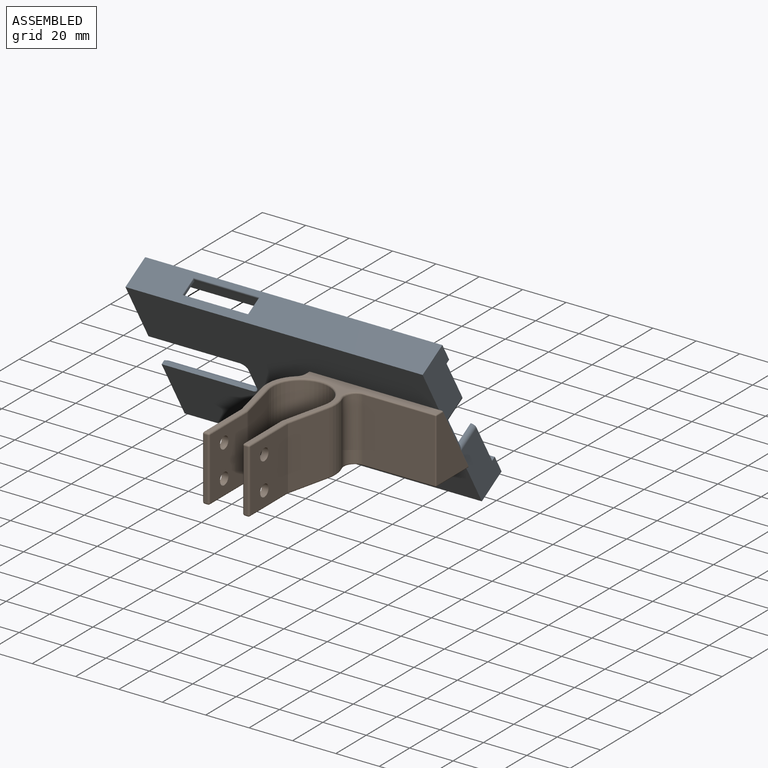
[diagram: assembled view]
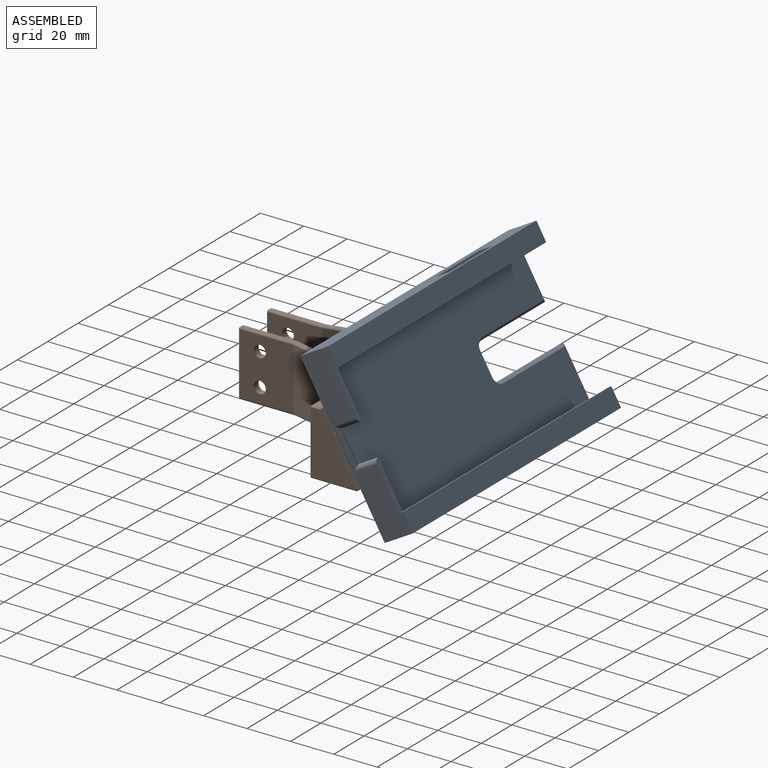
[diagram: assembled view, second angle]
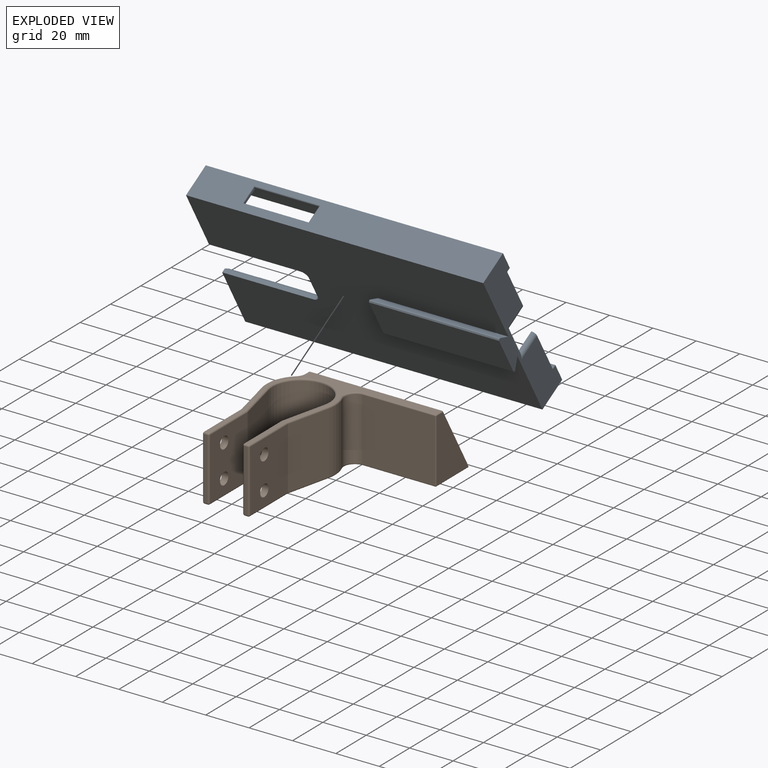
[diagram: exploded view]
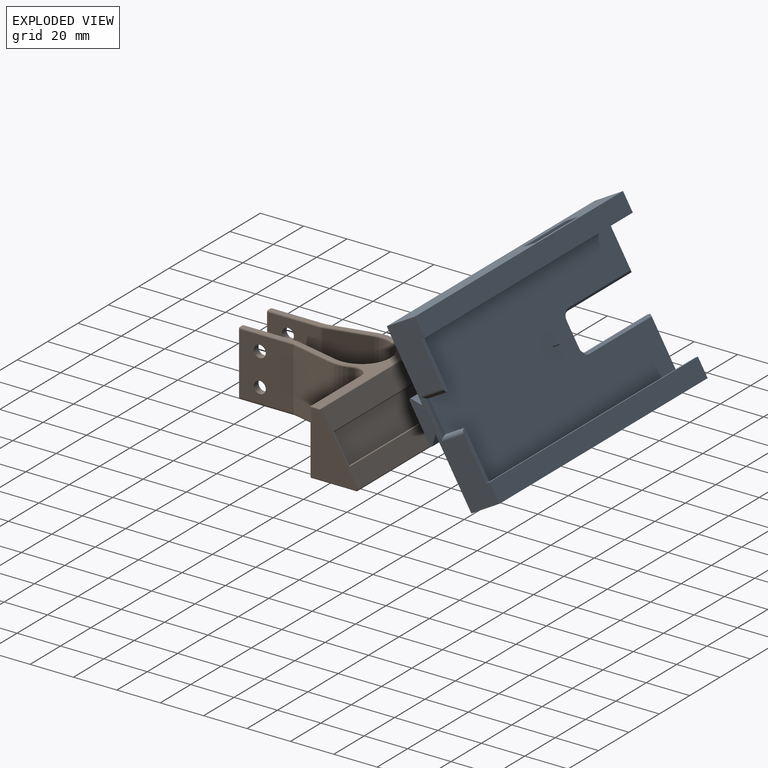
[diagram: exploded view, second angle]
ASSEMBLY  parts=2 mates=3
PART A: 72 faces, bbox 137x78x20 mm
  f0: plane 137x78mm, normal (0,0,-1), area 9193.4mm2, adj f2,f3,f4,f5,f6,f10,f11,f15
  f1: plane 22.5x2mm, normal (0,0,1), area 44.1mm2, adj f10,f13,f21,f25
  f2: plane 30.37x15mm, normal (1,0,0), area 81.7mm2, adj f0,f3,f15,f21,f22,f59,f60,f61
  f3: plane 42x2mm, normal (0,1,0), area 84mm2, adj f0,f2,f16,f62
  f4: plane 11.26x2mm, normal (1,0,0), area 22.5mm2, adj f0,f16,f17,f66
  f5: plane 42x2mm, normal (0,-1,0), area 84mm2, adj f0,f6,f17,f69
  f6: plane 30.37x15mm, normal (1,0,0), area 81.7mm2, adj f0,f5,f11,f18,f19,f63,f65,f67
  f7: plane 134x74mm, normal (0,0,1), area 9056.4mm2, adj f8,f9,f13,f14,f26,f61,f62,f64
  f8: plane 134x10mm, normal (0,-1,0), area 1061mm2, adj f7,f9,f20,f51,f52,f53,f54,f65
  f9: plane 29.5x10.5mm, normal (1,0,0), area 295.1mm2, adj f7,f8,f12,f18,f20,f24,f70
  f10: plane 78x20mm, normal (-1,0,0), area 905.8mm2, adj f0,f1,f11,f12,f15,f18,f19,f21
  f11: plane 137x15mm, normal (0,1,0), area 1776mm2, adj f0,f6,f10,f19,f55,f56,f57,f58
  f12: plane 22.5x2mm, normal (0,0,1), area 44.1mm2, adj f9,f10,f18,f24
  f13: plane 29.5x10.5mm, normal (1,0,0), area 295.1mm2, adj f1,f7,f14,f21,f23,f25,f71
  f14: plane 134x10mm, normal (0,1,0), area 1196mm2, adj f7,f13,f23,f43,f44,f45,f46,f60
  f15: plane 137x15mm, normal (0,-1,0), area 1911mm2, adj f0,f2,f10,f22,f47,f48,f49,f50
  f16: cylinder r=3mm len=3mm, axis (0,0,-1), area 9.4mm2, adj f0,f3,f4,f64
  f17: cylinder r=3mm len=3mm, axis (0,0,1), area 9.4mm2, adj f0,f4,f5,f68
  f18: plane 137x2mm, normal (0,-1,0), area 206.4mm2, adj f6,f9,f10,f12,f19,f63,f70
  f19: plane 137x9mm, normal (0,0,1), area 1233mm2, adj f6,f10,f11,f18
  f20: plane 134x6.5mm, normal (0,0,-1), area 871mm2, adj f8,f9,f63,f70
  f21: plane 137x2mm, normal (0,1,0), area 206.4mm2, adj f1,f2,f10,f13,f22,f59,f71
  f22: plane 137x9mm, normal (0,0,1), area 1233mm2, adj f2,f10,f15,f21
  f23: plane 134x6.5mm, normal (0,0,-1), area 871mm2, adj f13,f14,f59,f71
  f24: cylinder r=2mm len=12mm, axis (0,0,-1), area 33.7mm2, adj f9,f10,f12,f26
  f25: cylinder r=2mm len=12mm, axis (0,0,1), area 33.7mm2, adj f1,f10,f13,f26
  f26: cylinder r=2mm len=19mm, axis (0,1,0), area 51.7mm2, adj f7,f10,f24,f25
  f27: plane 60x4mm, normal (0,0.71,0.71), area 339.4mm2, adj f0,f10,f28,f32
  f28: plane 60x0.5mm, normal (0,1,0), area 30mm2, adj f10,f27,f32,f34
  f29: plane 60x19mm, normal (0,0,-1), area 1140mm2, adj f10,f32,f33,f34
  f30: plane 60x0.5mm, normal (0,-1,0), area 30mm2, adj f10,f31,f32,f33
  f31: plane 60x4mm, normal (0,-0.71,0.71), area 339.4mm2, adj f0,f10,f30,f32
  f32: plane 20x5mm, normal (1,0,0), area 83.8mm2, adj f0,f27,f28,f29,f30,f31,f33,f34
  f33: plane 60x0.5mm, normal (0,-0.71,-0.71), area 42.4mm2, adj f10,f29,f30,f32
  f34: plane 60x0.5mm, normal (0,0.71,-0.71), area 42.4mm2, adj f10,f28,f29,f32
  f35: plane 30x1mm, normal (0,0,1), area 30mm2, adj f36,f37,f54,f57
  f36: plane 8x1mm, normal (-1,0,0), area 8mm2, adj f35,f38,f53,f55
  f37: plane 8x1mm, normal (1,0,0), area 8mm2, adj f35,f38,f52,f58
  f38: plane 30x1mm, normal (0,0,-1), area 30mm2, adj f36,f37,f51,f56
  f39: plane 8x1mm, normal (1,0,0), area 8mm2, adj f40,f42,f44,f47
  f40: plane 15x1mm, normal (0,0,1), area 15mm2, adj f39,f41,f43,f49
  f41: plane 8x1mm, normal (-1,0,0), area 8mm2, adj f40,f42,f45,f50
  f42: plane 15x1mm, normal (0,0,-1), area 15mm2, adj f39,f41,f46,f48
  f43: cylinder r=0.5mm len=16mm, axis (-1,0,0), area 12.1mm2, adj f14,f40,f44,f45
  f44: cylinder r=0.5mm len=9mm, axis (0,0,1), area 6.6mm2, adj f14,f39,f43,f46
  f45: cylinder r=0.5mm len=9mm, axis (0,0,-1), area 6.6mm2, adj f14,f41,f43,f46
  f46: cylinder r=0.5mm len=16mm, axis (1,0,0), area 12.1mm2, adj f14,f42,f44,f45
  f47: cylinder r=0.5mm len=9mm, axis (0,0,-1), area 6.6mm2, adj f15,f39,f48,f49
  f48: cylinder r=0.5mm len=16mm, axis (-1,0,0), area 12.1mm2, adj f15,f42,f47,f50
  f49: cylinder r=0.5mm len=16mm, axis (1,0,0), area 12.1mm2, adj f15,f40,f47,f50
  f50: cylinder r=0.5mm len=9mm, axis (0,0,1), area 6.6mm2, adj f15,f41,f48,f49
  f51: cylinder r=0.5mm len=31mm, axis (-1,0,0), area 23.8mm2, adj f8,f38,f52,f53
  f52: cylinder r=0.5mm len=9mm, axis (0,0,-1), area 6.6mm2, adj f8,f37,f51,f54
  f53: cylinder r=0.5mm len=9mm, axis (0,0,1), area 6.6mm2, adj f8,f36,f51,f54
  f54: cylinder r=0.5mm len=31mm, axis (1,0,0), area 23.8mm2, adj f8,f35,f52,f53
  f55: cylinder r=0.5mm len=9mm, axis (0,0,1), area 6.6mm2, adj f11,f36,f56,f57
  f56: cylinder r=0.5mm len=31mm, axis (-1,0,0), area 23.8mm2, adj f11,f38,f55,f58
  f57: cylinder r=0.5mm len=31mm, axis (1,0,0), area 23.8mm2, adj f11,f35,f55,f58
  f58: cylinder r=0.5mm len=9mm, axis (0,0,-1), area 6.6mm2, adj f11,f37,f56,f57
  f59: plane 8x1mm, normal (0.71,0,-0.71), area 10.4mm2, adj f2,f21,f23,f60,f71
  f60: plane 12x1mm, normal (0.71,0.71,0), area 15.6mm2, adj f2,f14,f59,f61
  f61: plane 29.37x1mm, normal (0.71,0,0.71), area 40.1mm2, adj f2,f7,f60,f62
  f62: plane 42x1mm, normal (0,0.71,0.71), area 58.7mm2, adj f3,f7,f61,f64
  f63: plane 8x1mm, normal (0.71,0,-0.71), area 10.4mm2, adj f6,f18,f20,f65,f70
  f64: cone r=4mm half-angle=45deg, axis (0,0,1), area 7.8mm2, adj f7,f16,f62,f66
  f65: plane 12x1mm, normal (0.71,-0.71,0), area 15.6mm2, adj f6,f8,f63,f67
  f66: plane 11.26x1mm, normal (0.71,0,0.71), area 15.9mm2, adj f4,f7,f64,f68
  f67: plane 29.37x1mm, normal (0.71,0,0.71), area 40.1mm2, adj f6,f7,f65,f69
  f68: cone r=4mm half-angle=45deg, axis (0,0,1), area 7.8mm2, adj f7,f17,f66,f69
  f69: plane 42x1mm, normal (0,-0.71,0.71), area 58.7mm2, adj f5,f7,f67,f68
  f70: plane 134.5x0.5mm, normal (0,-0.71,-0.71), area 94.9mm2, adj f9,f18,f20,f63
  f71: plane 134.5x0.5mm, normal (0,0.71,-0.71), area 94.9mm2, adj f13,f21,f23,f59
PART B: 118 faces, bbox 70.5x84.6x30.2 mm
  f0: plane 18.8x17.12mm, normal (-1,0,0), area 116.7mm2, adj f21,f28,f29,f56,f58,f60,f62
  f1: plane 60x19.92mm, normal (0,0.87,0.5), area 1370mm2, adj f21,f22,f23,f31,f33,f34,f35
  f2: plane 61x29mm, normal (0,0.87,0.5), area 1141.8mm2, adj f46,f50,f52,f53,f55,f57,f58,f60
  f3: cylinder r=16mm len=28.4mm, axis (0,0,-1), area 487.5mm2, adj f11,f62,f67,f70
  f4: cylinder r=13mm len=28.4mm, axis (0,0,-1), area 1331mm2, adj f5,f15,f90,f93
  f5: plane 28.4x20.4mm, normal (-0.97,0.23,0), area 595.3mm2, adj f4,f64,f92,f95
  f6: plane 28.4x24.12mm, normal (-1,0,0), area 637.4mm2, adj f25,f27,f64,f96,f99,f100
  f7: plane 28.4x1.48mm, normal (0,-1,0), area 42.1mm2, adj f100,f101,f106,f107
  f8: plane 28.4x24.61mm, normal (1,0,0), area 651.3mm2, adj f25,f27,f107,f108,f112,f113
  f9: plane 28.4x20.19mm, normal (0.97,-0.23,0), area 589mm2, adj f10,f109,f113,f115
  f10: cylinder r=16mm len=28.4mm, axis (0,0,-1), area 288.2mm2, adj f9,f61,f105,f116
  f11: plane 28.4x20.19mm, normal (-0.97,-0.23,0), area 589mm2, adj f3,f69,f72,f73
  f12: plane 28.4x24.61mm, normal (-1,0,0), area 651.3mm2, adj f24,f26,f73,f74,f77,f78
  f13: plane 28.4x1.48mm, normal (0,-1,0), area 42.1mm2, adj f78,f79,f82,f83
  f14: plane 28.4x24.12mm, normal (1,0,0), area 637.4mm2, adj f24,f26,f63,f83,f84,f87
  f15: plane 28.4x20.4mm, normal (0.97,0.23,0), area 595.3mm2, adj f4,f63,f88,f91
  f16: plane 67.85x66.51mm, normal (0,0,1), area 461.8mm2, adj f41,f45,f46,f65,f66,f67,f69,f71
  f17: plane 83.26x67.85mm, normal (0,0,-1), area 1484.4mm2, adj f43,f51,f56,f57,f68,f70,f72,f75
  f18: plane 8.45x7.07mm, normal (-1,0,0), area 33.6mm2, adj f22,f30,f50,f53,f62,f65
  f19: plane 33.18x29mm, normal (0,-1,0), area 962.2mm2, adj f41,f43,f44,f61
  f20: plane 29x20.73mm, normal (1,0,0), area 358.3mm2, adj f44,f45,f51,f52
  f21: plane 60x5.94mm, normal (0,-0.97,0.26), area 368.8mm2, adj f0,f1,f23,f28,f58
  f22: plane 60x5.94mm, normal (0,-0.26,-0.97), area 368.8mm2, adj f1,f18,f23,f30,f53
  f23: plane 19.92x13.32mm, normal (-1,0,0), area 86.1mm2, adj f1,f21,f22,f53,f55,f58
  f24: cylinder r=2.75mm len=5.5mm, axis (-1,0,0), area 53.3mm2, adj f12,f14
  f25: cylinder r=2.75mm len=5.5mm, axis (-1,0,0), area 53.3mm2, adj f6,f8
  f26: cylinder r=2.75mm len=5.5mm, axis (-1,0,0), area 53.3mm2, adj f12,f14
  f27: cylinder r=2.75mm len=5.5mm, axis (-1,0,0), area 53.3mm2, adj f6,f8
  f28: plane 5x2.62mm, normal (0,-0.5,0.87), area 15.1mm2, adj f0,f21,f29,f34
  f29: plane 19.98x11.56mm, normal (0,0.87,0.5), area 115.4mm2, adj f0,f28,f30,f34,f62
  f30: plane 5.38x2.64mm, normal (0,0.5,-0.87), area 15.4mm2, adj f18,f22,f29,f34,f62
  f31: plane 8x1.75mm, normal (0,-0.5,0.87), area 14.5mm2, adj f1,f32,f34,f38,f39,f40
  f32: plane 18.19x10.5mm, normal (0,-0.87,-0.5), area 168mm2, adj f31,f33,f34,f39
  f33: plane 8x1.75mm, normal (0,0.5,-0.87), area 14.5mm2, adj f1,f32,f34,f37,f39,f40
  f34: plane 21.43x14.12mm, normal (-1,0,0), area 27mm2, adj f1,f28,f29,f30,f31,f32,f33
  f35: plane 18.19x10.87mm, normal (1,0,0), area 20mm2, adj f1,f36,f37,f38
  f36: plane 16.45x9.5mm, normal (0,0.87,0.5), area 3.8mm2, adj f35,f37,f38,f40
  f37: plane 1.37x1.2mm, normal (0,0.97,-0.26), area 1mm2, adj f33,f35,f36,f40
  f38: plane 1.37x1.2mm, normal (0,0.26,0.97), area 1mm2, adj f31,f35,f36,f40
  f39: plane 18.3x10.69mm, normal (-1,0,0), area 4.6mm2, adj f31,f32,f33,f40
  f40: plane 19.09x12.43mm, normal (-0.71,0.61,0.35), area 81.7mm2, adj f31,f33,f36,f37,f38,f39
  f41: cylinder r=0.5mm len=33.18mm, axis (-1,0,0), area 26.1mm2, adj f16,f19,f42,f102
  f42: sphere r=0.5mm, area 0.4mm2, adj f41,f44,f45
  f43: cylinder r=0.5mm len=33.18mm, axis (1,0,0), area 26.1mm2, adj f17,f19,f48,f117
  f44: cylinder r=0.5mm len=29mm, axis (0,0,1), area 22.8mm2, adj f19,f20,f42,f48
  f45: cylinder r=0.5mm len=3.98mm, axis (0,-1,0), area 3.1mm2, adj f16,f20,f42,f49
  f46: cylinder r=0.5mm len=61mm, axis (-1,0,0), area 31.9mm2, adj f2,f16,f47,f49,f65
  f47: sphere r=0.5mm, area 0mm2, adj f46,f50,f65
  f48: sphere r=0.5mm, area 0.4mm2, adj f43,f44,f51
  f49: sphere r=0.5mm, area 0.2mm2, adj f45,f46,f52
  f50: cylinder r=0.5mm len=8.93mm, axis (0,-0.5,0.87), area 7.6mm2, adj f2,f18,f47,f53,f65
  f51: cylinder r=0.5mm len=20.73mm, axis (0,1,0), area 16.3mm2, adj f17,f20,f48,f54
  f52: cylinder r=0.5mm len=29.25mm, axis (0,0.5,-0.87), area 26.3mm2, adj f2,f20,f49,f54
  f53: cylinder r=0.5mm len=60.5mm, axis (-1,0,0), area 70.7mm2, adj f2,f18,f22,f23,f50,f55
  f54: sphere r=0.5mm, area 0.3mm2, adj f51,f52,f57
  f55: cylinder r=0.5mm len=13.25mm, axis (0,0.5,-0.87), area 11.4mm2, adj f2,f23,f53,f58
  f56: cylinder r=0.5mm len=18.8mm, axis (0,-1,0), area 14.8mm2, adj f0,f17,f59,f68
  f57: cylinder r=0.5mm len=61mm, axis (1,0,0), area 63.9mm2, adj f2,f17,f54,f59
  f58: cylinder r=0.5mm len=60.5mm, axis (-1,0,0), area 70.7mm2, adj f0,f2,f21,f23,f55,f60
  f59: sphere r=0.5mm, area 0.7mm2, adj f56,f57,f60
  f60: cylinder r=0.5mm len=8.43mm, axis (0,-0.5,0.87), area 7.2mm2, adj f0,f2,f58,f59
  f61: cylinder r=5mm len=29mm, axis (0,0,-1), area 283.2mm2, adj f10,f19,f102,f117
  f62: cylinder r=5mm len=28.7mm, axis (0,0,-1), area 116mm2, adj f0,f3,f18,f29,f30,f66,f68
  f63: cylinder r=5mm len=28.4mm, axis (0,0,1), area 32.9mm2, adj f14,f15,f86,f89
  f64: cylinder r=5mm len=28.4mm, axis (0,0,1), area 32.9mm2, adj f5,f6,f94,f97
  f65: cylinder r=0.8mm len=2.38mm, axis (0,-1,0), area 2.9mm2, adj f16,f18,f46,f47,f50,f66
  f66: torus R=5.8mm, axis (0,0,1), area 5.6mm2, adj f16,f62,f65,f67
  f67: torus R=15.2mm, axis (0,0,1), area 21.2mm2, adj f3,f16,f66,f69
  f68: bspline ~4.32x2.17mm, area 4.5mm2, adj f17,f56,f62,f70
  f69: cylinder r=0.8mm len=20.37mm, axis (-0.23,0.97,0), area 26.1mm2, adj f11,f16,f67,f71
  f70: torus R=15.2mm, axis (0,0,1), area 21.2mm2, adj f3,f17,f68,f72
  f71: torus R=1.6mm, axis (0,0,1), area 0.3mm2, adj f16,f69,f73,f74
  f72: cylinder r=0.8mm len=20.37mm, axis (0.23,-0.97,0), area 26.1mm2, adj f11,f17,f70,f75
  f73: cylinder r=0.8mm len=28.4mm, axis (0,0,1), area 5.3mm2, adj f11,f12,f71,f75
  f74: cylinder r=0.8mm len=24.61mm, axis (0,1,0), area 30.9mm2, adj f12,f16,f71,f76
  f75: torus R=1.6mm, axis (0,0,1), area 0.3mm2, adj f17,f72,f73,f77
  f76: sphere r=0.8mm, area 1mm2, adj f74,f78,f79
  f77: cylinder r=0.8mm len=24.61mm, axis (0,-1,0), area 30.9mm2, adj f12,f17,f75,f80
  f78: cylinder r=0.8mm len=28.4mm, axis (0,0,-1), area 35.7mm2, adj f12,f13,f76,f80
  f79: cylinder r=0.8mm len=1.48mm, axis (-1,0,0), area 1.9mm2, adj f13,f16,f76,f81
  f80: sphere r=0.8mm, area 1mm2, adj f77,f78,f82
  f81: sphere r=0.8mm, area 0.6mm2, adj f79,f83,f84
  f82: cylinder r=0.8mm len=1.48mm, axis (1,0,0), area 1.9mm2, adj f13,f17,f80,f85
  f83: cylinder r=0.8mm len=28.4mm, axis (0,0,-1), area 35.7mm2, adj f13,f14,f81,f85
  f84: cylinder r=0.8mm len=24.12mm, axis (0,-1,0), area 30.3mm2, adj f14,f16,f81,f86
  f85: sphere r=0.8mm, area 1mm2, adj f82,f83,f87
  f86: torus R=4.2mm, axis (0,0,1), area 1.4mm2, adj f16,f63,f84,f88
  f87: cylinder r=0.8mm len=24.12mm, axis (0,1,0), area 30.3mm2, adj f14,f17,f85,f89
  f88: cylinder r=0.8mm len=20.58mm, axis (0.23,-0.97,0), area 26.3mm2, adj f15,f16,f86,f90
  f89: torus R=4.2mm, axis (0,0,1), area 1.4mm2, adj f17,f63,f87,f91
  f90: torus R=13.8mm, axis (0,0,1), area 60.2mm2, adj f4,f16,f88,f92
  f91: cylinder r=0.8mm len=20.58mm, axis (-0.23,0.97,0), area 26.3mm2, adj f15,f17,f89,f93
  f92: cylinder r=0.8mm len=20.58mm, axis (0.23,0.97,0), area 26.3mm2, adj f5,f16,f90,f94
  f93: torus R=13.8mm, axis (0,0,1), area 60.2mm2, adj f4,f17,f91,f95
  f94: torus R=4.2mm, axis (0,0,1), area 1.4mm2, adj f16,f64,f92,f96
  f95: cylinder r=0.8mm len=20.58mm, axis (-0.23,-0.97,0), area 26.3mm2, adj f5,f17,f93,f97
  f96: cylinder r=0.8mm len=24.12mm, axis (0,1,0), area 30.3mm2, adj f6,f16,f94,f98
  f97: torus R=4.2mm, axis (0,0,1), area 1.4mm2, adj f17,f64,f95,f99
  f98: sphere r=0.8mm, area 1mm2, adj f96,f100,f101
  f99: cylinder r=0.8mm len=24.12mm, axis (0,-1,0), area 30.3mm2, adj f6,f17,f97,f103
  f100: cylinder r=0.8mm len=28.4mm, axis (0,0,-1), area 35.7mm2, adj f6,f7,f98,f103
  f101: cylinder r=0.8mm len=1.48mm, axis (-1,0,0), area 1.9mm2, adj f7,f16,f98,f104
  f102: bspline ~7.77x5.8mm, area 10.5mm2, adj f16,f41,f61,f105
  f103: sphere r=0.8mm, area 1mm2, adj f99,f100,f106
  f104: sphere r=0.8mm, area 1mm2, adj f101,f107,f108
  f105: torus R=15.2mm, axis (0,0,1), area 12.5mm2, adj f10,f16,f102,f109
  f106: cylinder r=0.8mm len=1.48mm, axis (1,0,0), area 1.9mm2, adj f7,f17,f103,f110
  f107: cylinder r=0.8mm len=28.4mm, axis (0,0,-1), area 35.7mm2, adj f7,f8,f104,f110
  f108: cylinder r=0.8mm len=24.61mm, axis (0,-1,0), area 30.9mm2, adj f8,f16,f104,f111
  f109: cylinder r=0.8mm len=20.37mm, axis (-0.23,-0.97,0), area 26.1mm2, adj f9,f16,f105,f111
  f110: sphere r=0.8mm, area 1mm2, adj f106,f107,f112
  f111: torus R=1.6mm, axis (0,0,1), area 0.3mm2, adj f16,f108,f109,f113
  f112: cylinder r=0.8mm len=24.61mm, axis (0,1,0), area 30.9mm2, adj f8,f17,f110,f114
  f113: cylinder r=0.8mm len=28.4mm, axis (0,0,1), area 5.3mm2, adj f8,f9,f111,f114
  f114: torus R=1.6mm, axis (0,0,1), area 0.3mm2, adj f17,f112,f113,f115
  f115: cylinder r=0.8mm len=20.37mm, axis (0.23,0.97,0), area 26.1mm2, adj f9,f17,f114,f116
  f116: torus R=15.2mm, axis (0,0,1), area 12.5mm2, adj f10,f17,f115,f117
  f117: bspline ~7.77x5.8mm, area 10.5mm2, adj f17,f43,f61,f116
PLACE A rot(axis=(0,-0.5,-0.87),180deg) t=(-10.02,131.61,102.96)mm
PLACE B t=(8.48,80.84,88.22)mm
MATE planar A.f10 <-> B.f23  axis (1,0,0) through (59.48,127.27,100.46)mm
MATE planar A.f31 <-> B.f21  axis (0,0.97,-0.26) through (29.48,133.87,95.03)mm
MATE planar A.f0 <-> B.f2  axis (0,-0.87,-0.5) through (-8.16,131.61,102.96)mm
